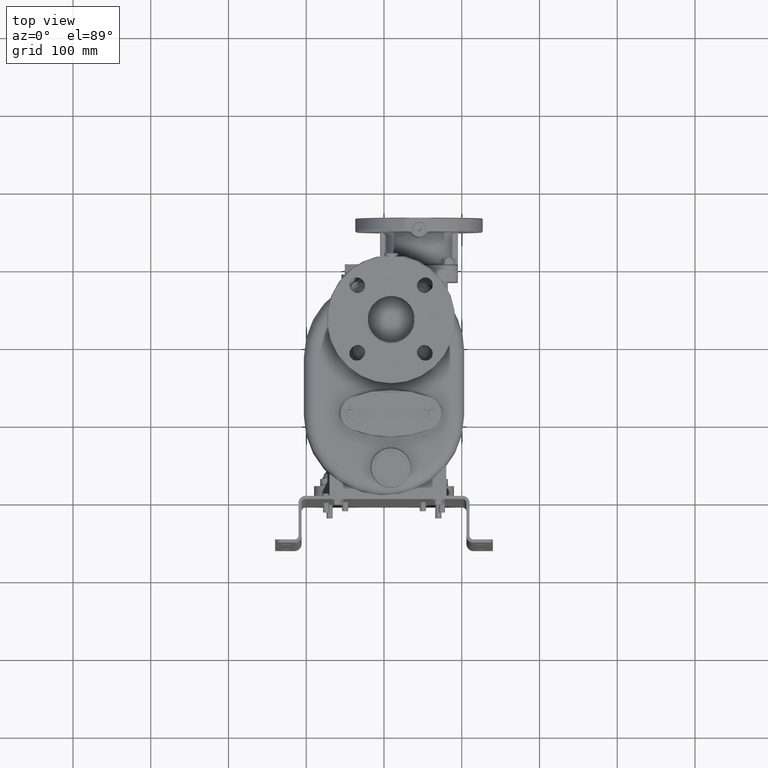
[diagram: clean part render]
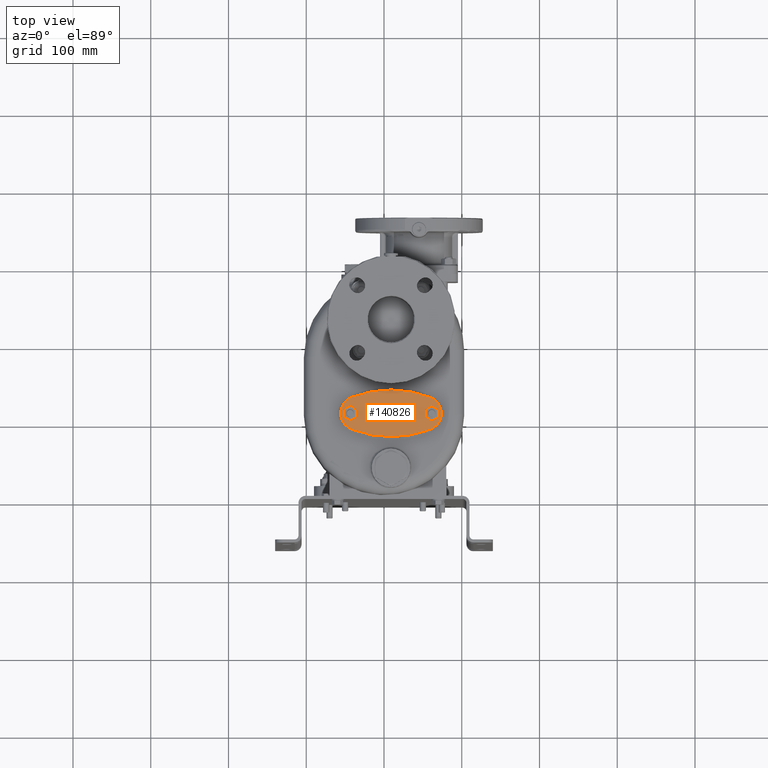
[diagram: same view with one face highlighted and labeled with its STEP entity id]
A machine part, top view. The second image highlights one B-rep face of the part: STEP entity #140826.
In plain terms, the highlighted planar face has unit normal (0, 0, 1).
Its self-contained STEP definition (entity closure, byte-faithful):
#54937=CARTESIAN_POINT('',(8.981681545673E0,2.149999999963E2,8.4E1));
#54938=DIRECTION('',(0.E0,0.E0,1.E0));
#54939=DIRECTION('',(-3.618673500390E-1,-9.322295967066E-1,0.E0));
#54940=AXIS2_PLACEMENT_3D('',#54937,#54938,#54939);
#54942=CARTESIAN_POINT('',(-3.372663690865E1,1.05E2,8.4E1));
#54943=DIRECTION('',(0.E0,0.E0,1.E0));
#54944=DIRECTION('',(-3.615050249949E-1,9.323701608822E-1,0.E0));
#54945=AXIS2_PLACEMENT_3D('',#54942,#54943,#54944);
#54947=CARTESIAN_POINT('',(8.981681545673E0,-5.E0,8.4E1));
#54948=DIRECTION('',(0.E0,0.E0,1.E0));
#54949=DIRECTION('',(3.618673500301E-1,9.322295967101E-1,0.E0));
#54950=AXIS2_PLACEMENT_3D('',#54947,#54948,#54949);
#54952=CARTESIAN_POINT('',(5.169E1,1.05E2,8.4E1));
#54953=DIRECTION('',(0.E0,0.E0,1.E0));
#54954=DIRECTION('',(3.615050249948E-1,-9.323701608822E-1,0.E0));
#54955=AXIS2_PLACEMENT_3D('',#54952,#54953,#54954);
#54957=CARTESIAN_POINT('',(6.149E1,1.05E2,8.4E1));
#54958=DIRECTION('',(0.E0,0.E0,-1.E0));
#54959=DIRECTION('',(5.000000001399E-1,-8.660254037037E-1,0.E0));
#54960=AXIS2_PLACEMENT_3D('',#54957,#54958,#54959);
#54962=CARTESIAN_POINT('',(6.149E1,1.05E2,8.4E1));
#54963=DIRECTION('',(0.E0,0.E0,-1.E0));
#54964=DIRECTION('',(1.E0,4.185102565155E-8,0.E0));
#54965=AXIS2_PLACEMENT_3D('',#54962,#54963,#54964);
#54967=CARTESIAN_POINT('',(6.149E1,1.05E2,8.4E1));
#54968=DIRECTION('',(0.E0,0.E0,-1.E0));
#54969=DIRECTION('',(4.999999998600E-1,8.660254038653E-1,0.E0));
#54970=AXIS2_PLACEMENT_3D('',#54967,#54968,#54969);
#54972=CARTESIAN_POINT('',(6.149E1,1.05E2,8.4E1));
#54973=DIRECTION('',(0.E0,0.E0,-1.E0));
#54974=DIRECTION('',(-5.000000001397E-1,8.660254037038E-1,0.E0));
#54975=AXIS2_PLACEMENT_3D('',#54972,#54973,#54974);
#54977=CARTESIAN_POINT('',(6.149E1,1.05E2,8.4E1));
#54978=DIRECTION('',(0.E0,0.E0,-1.E0));
#54979=DIRECTION('',(-1.E0,-1.616961205454E-10,0.E0));
#54980=AXIS2_PLACEMENT_3D('',#54977,#54978,#54979);
#54982=CARTESIAN_POINT('',(6.149E1,1.05E2,8.4E1));
#54983=DIRECTION('',(0.E0,0.E0,-1.E0));
#54984=DIRECTION('',(-4.999999998601E-1,-8.660254038652E-1,0.E0));
#54985=AXIS2_PLACEMENT_3D('',#54982,#54983,#54984);
#54987=CARTESIAN_POINT('',(-4.351E1,1.05E2,8.4E1));
#54988=DIRECTION('',(0.E0,0.E0,-1.E0));
#54989=DIRECTION('',(5.000000001399E-1,-8.660254037037E-1,0.E0));
#54990=AXIS2_PLACEMENT_3D('',#54987,#54988,#54989);
#54992=CARTESIAN_POINT('',(-4.351E1,1.05E2,8.4E1));
#54993=DIRECTION('',(0.E0,0.E0,-1.E0));
#54994=DIRECTION('',(1.E0,4.185094373016E-8,0.E0));
#54995=AXIS2_PLACEMENT_3D('',#54992,#54993,#54994);
#54997=CARTESIAN_POINT('',(-4.351E1,1.05E2,8.4E1));
#54998=DIRECTION('',(0.E0,0.E0,-1.E0));
#54999=DIRECTION('',(4.999999998600E-1,8.660254038653E-1,0.E0));
#55000=AXIS2_PLACEMENT_3D('',#54997,#54998,#54999);
#55002=CARTESIAN_POINT('',(-4.351E1,1.05E2,8.4E1));
#55003=DIRECTION('',(0.E0,0.E0,-1.E0));
#55004=DIRECTION('',(-5.000000001397E-1,8.660254037038E-1,0.E0));
#55005=AXIS2_PLACEMENT_3D('',#55002,#55003,#55004);
#55007=CARTESIAN_POINT('',(-4.351E1,1.05E2,8.4E1));
#55008=DIRECTION('',(0.E0,0.E0,-1.E0));
#55009=DIRECTION('',(-1.E0,-1.616961205454E-10,0.E0));
#55010=AXIS2_PLACEMENT_3D('',#55007,#55008,#55009);
#55012=CARTESIAN_POINT('',(-4.351E1,1.05E2,8.4E1));
#55013=DIRECTION('',(0.E0,0.E0,-1.E0));
#55014=DIRECTION('',(-4.999999998601E-1,-8.660254038652E-1,0.E0));
#55015=AXIS2_PLACEMENT_3D('',#55012,#55013,#55014);
#78794=CARTESIAN_POINT('',(-4.167974745854E1,8.448785646059E1,8.4E1));
#78795=CARTESIAN_POINT('',(5.964311054989E1,8.448785646059E1,8.4E1));
#78796=VERTEX_POINT('',#78794);
#78797=VERTEX_POINT('',#78795);
#78798=CARTESIAN_POINT('',(5.964311054989E1,1.255121435394E2,8.4E1));
#78799=VERTEX_POINT('',#78798);
#78800=CARTESIAN_POINT('',(-4.167974745854E1,1.255121435394E2,8.4E1));
#78801=VERTEX_POINT('',#78800);
#78844=CARTESIAN_POINT('',(6.574000000119E1,9.763878406852E1,8.4E1));
#78845=CARTESIAN_POINT('',(5.724000000119E1,9.763878406715E1,8.4E1));
#78846=VERTEX_POINT('',#78844);
#78847=VERTEX_POINT('',#78845);
#78848=CARTESIAN_POINT('',(5.299E1,1.049999999986E2,8.4E1));
#78849=VERTEX_POINT('',#78848);
#78850=CARTESIAN_POINT('',(5.723999999881E1,1.123612159315E2,8.4E1));
#78851=VERTEX_POINT('',#78850);
#78852=CARTESIAN_POINT('',(6.573999999881E1,1.123612159329E2,8.4E1));
#78853=VERTEX_POINT('',#78852);
#78854=CARTESIAN_POINT('',(6.999E1,1.050000003557E2,8.4E1));
#78855=VERTEX_POINT('',#78854);
#78884=CARTESIAN_POINT('',(-3.925999999881E1,9.763878406852E1,8.4E1));
#78885=CARTESIAN_POINT('',(-4.775999999881E1,9.763878406715E1,8.4E1));
#78886=VERTEX_POINT('',#78884);
#78887=VERTEX_POINT('',#78885);
#78888=CARTESIAN_POINT('',(-5.201E1,1.049999999986E2,8.4E1));
#78889=VERTEX_POINT('',#78888);
#78890=CARTESIAN_POINT('',(-4.776000000119E1,1.123612159315E2,8.4E1));
#78891=VERTEX_POINT('',#78890);
#78892=CARTESIAN_POINT('',(-3.926000000119E1,1.123612159329E2,8.4E1));
#78893=VERTEX_POINT('',#78892);
#78894=CARTESIAN_POINT('',(-3.501E1,1.050000003557E2,8.4E1));
#78895=VERTEX_POINT('',#78894);
#140787=CARTESIAN_POINT('',(8.99E0,1.05E2,8.4E1));
#140788=DIRECTION('',(0.E0,0.E0,1.E0));
#140789=DIRECTION('',(-1.E0,0.E0,0.E0));
#140790=AXIS2_PLACEMENT_3D('',#140787,#140788,#140789);
#140791=PLANE('',#140790);
#140792=ORIENTED_EDGE('',*,*,#140723,.F.);
#140793=ORIENTED_EDGE('',*,*,#140738,.F.);
#140794=ORIENTED_EDGE('',*,*,#140753,.F.);
#140795=ORIENTED_EDGE('',*,*,#140780,.F.);
#140796=EDGE_LOOP('',(#140792,#140793,#140794,#140795));
#140797=FACE_OUTER_BOUND('',#140796,.F.);
#140799=ORIENTED_EDGE('',*,*,#140798,.F.);
#140801=ORIENTED_EDGE('',*,*,#140800,.F.);
#140803=ORIENTED_EDGE('',*,*,#140802,.F.);
#140805=ORIENTED_EDGE('',*,*,#140804,.F.);
#140807=ORIENTED_EDGE('',*,*,#140806,.F.);
#140809=ORIENTED_EDGE('',*,*,#140808,.F.);
#140810=EDGE_LOOP('',(#140799,#140801,#140803,#140805,#140807,#140809));
#140811=FACE_BOUND('',#140810,.F.);
#140813=ORIENTED_EDGE('',*,*,#140812,.F.);
#140815=ORIENTED_EDGE('',*,*,#140814,.F.);
#140817=ORIENTED_EDGE('',*,*,#140816,.F.);
#140819=ORIENTED_EDGE('',*,*,#140818,.F.);
#140821=ORIENTED_EDGE('',*,*,#140820,.F.);
#140823=ORIENTED_EDGE('',*,*,#140822,.F.);
#140824=EDGE_LOOP('',(#140813,#140815,#140817,#140819,#140821,#140823));
#140825=FACE_BOUND('',#140824,.F.);
#140826=ADVANCED_FACE('',(#140797,#140811,#140825),#140791,.T.);
#54941=CIRCLE('',#54940,1.399999999966E2);
#54946=CIRCLE('',#54945,2.2E1);
#54951=CIRCLE('',#54950,1.4E2);
#54956=CIRCLE('',#54955,2.2E1);
#54961=CIRCLE('',#54960,8.5E0);
#54966=CIRCLE('',#54965,8.5E0);
#54971=CIRCLE('',#54970,8.5E0);
#54976=CIRCLE('',#54975,8.5E0);
#54981=CIRCLE('',#54980,8.5E0);
#54986=CIRCLE('',#54985,8.5E0);
#54991=CIRCLE('',#54990,8.5E0);
#54996=CIRCLE('',#54995,8.5E0);
#55001=CIRCLE('',#55000,8.5E0);
#55006=CIRCLE('',#55005,8.5E0);
#55011=CIRCLE('',#55010,8.5E0);
#55016=CIRCLE('',#55015,8.5E0);
#140723=EDGE_CURVE('',#78796,#78797,#54941,.T.);
#140738=EDGE_CURVE('',#78801,#78796,#54946,.T.);
#140753=EDGE_CURVE('',#78799,#78801,#54951,.T.);
#140780=EDGE_CURVE('',#78797,#78799,#54956,.T.);
#140798=EDGE_CURVE('',#78846,#78847,#54961,.T.);
#140800=EDGE_CURVE('',#78855,#78846,#54966,.T.);
#140802=EDGE_CURVE('',#78853,#78855,#54971,.T.);
#140804=EDGE_CURVE('',#78851,#78853,#54976,.T.);
#140806=EDGE_CURVE('',#78849,#78851,#54981,.T.);
#140808=EDGE_CURVE('',#78847,#78849,#54986,.T.);
#140812=EDGE_CURVE('',#78886,#78887,#54991,.T.);
#140814=EDGE_CURVE('',#78895,#78886,#54996,.T.);
#140816=EDGE_CURVE('',#78893,#78895,#55001,.T.);
#140818=EDGE_CURVE('',#78891,#78893,#55006,.T.);
#140820=EDGE_CURVE('',#78889,#78891,#55011,.T.);
#140822=EDGE_CURVE('',#78887,#78889,#55016,.T.);